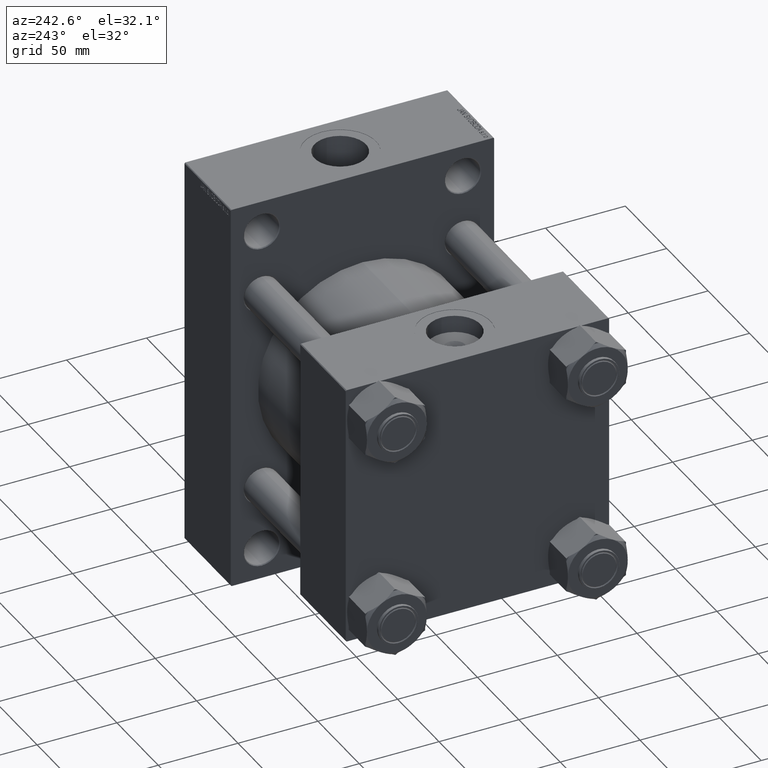
[diagram: clean part render]
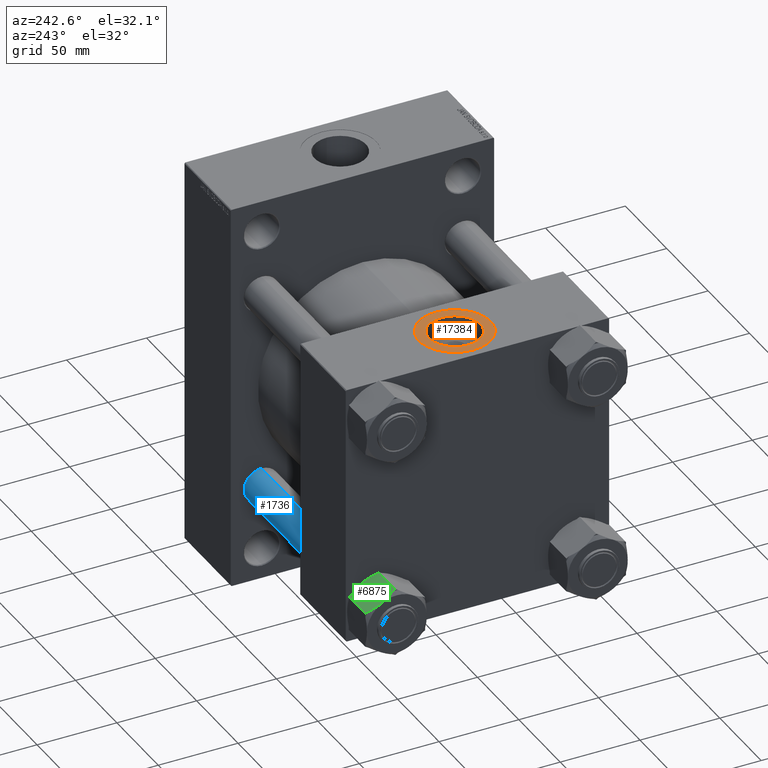
[diagram: same view with three faces highlighted in distinct colors, each labeled with its STEP entity id]
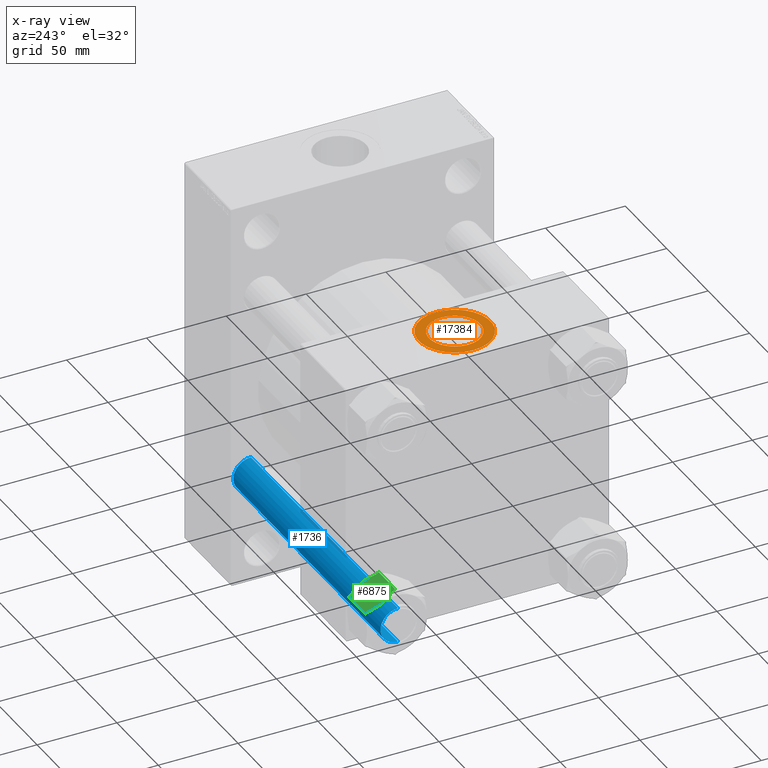
[diagram: x-ray of the same camera — body ghosted, the three highlighted faces saturated]
A machine part, auxiliary view with three faces highlighted in distinct colors.
The next image is the same camera in x-ray (body ghosted, the three faces saturated) — at least one of them is partly hidden behind the body in this view.
Their STEP definitions:

[orange] entity #17384 — the highlighted planar face has unit normal (0, 0, 1).
#1739 = ORIENTED_EDGE ( 'NONE', *, *, #7245, .T. ) ;
#4584 = DIRECTION ( 'NONE',  ( 0.000000000000000000, 0.000000000000000000, 1.000000000000000000 ) ) ;
#4662 = VERTEX_POINT ( 'NONE', #31161 ) ;
#6304 = FACE_BOUND ( 'NONE', #45972, .T. ) ;
#7245 = EDGE_CURVE ( 'NONE', #19672, #4662, #30187, .T. ) ;
#7646 = EDGE_CURVE ( 'NONE', #4662, #19672, #28718, .T. ) ;
#9066 = ORIENTED_EDGE ( 'NONE', *, *, #7646, .T. ) ;
#9738 = AXIS2_PLACEMENT_3D ( 'NONE', #13514, #28227, #20996 ) ;
#11211 = EDGE_LOOP ( 'NONE', ( #1739, #9066 ) ) ;
#11302 = ORIENTED_EDGE ( 'NONE', *, *, #14166, .F. ) ;
#11693 = CARTESIAN_POINT ( 'NONE',  ( 27.50000000000000000, -1.561251128379125754E-14, 82.29999999999996874 ) ) ;
#12532 = VERTEX_POINT ( 'NONE', #24367 ) ;
#13364 = DIRECTION ( 'NONE',  ( 0.000000000000000000, 0.000000000000000000, 1.000000000000000000 ) ) ;
#13514 = CARTESIAN_POINT ( 'NONE',  ( 27.50000000000000000, -1.561251128379125754E-14, 82.29999999999996874 ) ) ;
#14166 = EDGE_CURVE ( 'NONE', #43901, #12532, #15789, .T. ) ;
#14557 = CIRCLE ( 'NONE', #38406, 16.12000000000000455 ) ;
#15789 = CIRCLE ( 'NONE', #38095, 16.12000000000000455 ) ;
#16508 = ORIENTED_EDGE ( 'NONE', *, *, #26451, .F. ) ;
#17384 = ADVANCED_FACE ( 'NONE', ( #6304, #39558 ), #43879, .T. ) ;
#18576 = DIRECTION ( 'NONE',  ( 1.000000000000000000, 0.000000000000000000, 0.000000000000000000 ) ) ;
#19446 = AXIS2_PLACEMENT_3D ( 'NONE', #23745, #13364, #31691 ) ;
#19672 = VERTEX_POINT ( 'NONE', #24539 ) ;
#20996 = DIRECTION ( 'NONE',  ( 1.000000000000000000, 0.000000000000000000, -0.000000000000000000 ) ) ;
#22906 = DIRECTION ( 'NONE',  ( 0.000000000000000000, 0.000000000000000000, 1.000000000000000000 ) ) ;
#23745 = CARTESIAN_POINT ( 'NONE',  ( 27.50000000000000000, -1.561251128379125754E-14, 82.29999999999996874 ) ) ;
#24367 = CARTESIAN_POINT ( 'NONE',  ( 43.62000000000000455, -1.561251128379125754E-14, 82.29999999999996874 ) ) ;
#24539 = CARTESIAN_POINT ( 'NONE',  ( 50.00000000000000000, -1.561251128379125754E-14, 82.29999999999996874 ) ) ;
#26289 = CARTESIAN_POINT ( 'NONE',  ( 27.50000000000000000, -1.561251128379125754E-14, 82.29999999999996874 ) ) ;
#26451 = EDGE_CURVE ( 'NONE', #12532, #43901, #14557, .T. ) ;
#26519 = CARTESIAN_POINT ( 'NONE',  ( 27.50000000000000000, -1.561251128379125754E-14, 82.29999999999996874 ) ) ;
#28227 = DIRECTION ( 'NONE',  ( 0.000000000000000000, 0.000000000000000000, 1.000000000000000000 ) ) ;
#28718 = CIRCLE ( 'NONE', #19446, 22.50000000000000355 ) ;
#30187 = CIRCLE ( 'NONE', #47141, 22.50000000000000355 ) ;
#31161 = CARTESIAN_POINT ( 'NONE',  ( 4.999999999999993783, -1.285705598570971355E-14, 82.29999999999996874 ) ) ;
#31691 = DIRECTION ( 'NONE',  ( 1.000000000000000000, 0.000000000000000000, 0.000000000000000000 ) ) ;
#33864 = DIRECTION ( 'NONE',  ( 1.000000000000000000, 0.000000000000000000, 0.000000000000000000 ) ) ;
#37199 = CARTESIAN_POINT ( 'NONE',  ( 11.37999999999999012, -1.363838064356572430E-14, 82.29999999999996874 ) ) ;
#37622 = DIRECTION ( 'NONE',  ( 1.000000000000000000, 0.000000000000000000, 0.000000000000000000 ) ) ;
#38095 = AXIS2_PLACEMENT_3D ( 'NONE', #11693, #41100, #33864 ) ;
#38406 = AXIS2_PLACEMENT_3D ( 'NONE', #26519, #22906, #37622 ) ;
#39558 = FACE_OUTER_BOUND ( 'NONE', #11211, .T. ) ;
#41100 = DIRECTION ( 'NONE',  ( 0.000000000000000000, 0.000000000000000000, 1.000000000000000000 ) ) ;
#43879 = PLANE ( 'NONE',  #9738 ) ;
#43901 = VERTEX_POINT ( 'NONE', #37199 ) ;
#45972 = EDGE_LOOP ( 'NONE', ( #16508, #11302 ) ) ;
#47141 = AXIS2_PLACEMENT_3D ( 'NONE', #26289, #4584, #18576 ) ;

[blue] entity #1736 — the highlighted cylindrical surface (edge-blend (fillet) strip) has radius 11 mm, axis along (-1, -0, 0).
#1736 = ADVANCED_FACE ( 'NONE', ( #4586 ), #44615, .T. ) ;
#4586 = FACE_OUTER_BOUND ( 'NONE', #47509, .T. ) ;
#6032 = ORIENTED_EDGE ( 'NONE', *, *, #39517, .T. ) ;
#6513 = VERTEX_POINT ( 'NONE', #31723 ) ;
#6838 = VECTOR ( 'NONE', #42385, 1000.000000000000000 ) ;
#8511 = ORIENTED_EDGE ( 'NONE', *, *, #16439, .F. ) ;
#9456 = CARTESIAN_POINT ( 'NONE',  ( 0.000000000000000000, 0.000000000000000000, 0.5000000000001392220 ) ) ;
#9709 = CARTESIAN_POINT ( 'NONE',  ( -11.00000000000000000, 0.000000000000000000, 179.0000000000000000 ) ) ;
#9943 = DIRECTION ( 'NONE',  ( 1.000000000000000000, 0.000000000000000000, 0.000000000000000000 ) ) ;
#11593 = DIRECTION ( 'NONE',  ( -0.000000000000000000, -0.000000000000000000, -1.000000000000000000 ) ) ;
#11629 = LINE ( 'NONE', #33553, #6838 ) ;
#13807 = LINE ( 'NONE', #9709, #33562 ) ;
#16439 = EDGE_CURVE ( 'NONE', #6513, #38801, #13807, .T. ) ;
#18061 = ORIENTED_EDGE ( 'NONE', *, *, #36986, .T. ) ;
#19957 = VERTEX_POINT ( 'NONE', #41623 ) ;
#20542 = DIRECTION ( 'NONE',  ( 1.000000000000000000, 0.000000000000000000, 0.000000000000000000 ) ) ;
#21173 = AXIS2_PLACEMENT_3D ( 'NONE', #9456, #46567, #9943 ) ;
#22128 = AXIS2_PLACEMENT_3D ( 'NONE', #38866, #35730, #20542 ) ;
#22578 = CARTESIAN_POINT ( 'NONE',  ( -11.00000000000000000, 0.000000000000000000, 0.5000000000001392220 ) ) ;
#26933 = CARTESIAN_POINT ( 'NONE',  ( 11.00000000000000000, 1.347111479062088207E-15, 0.5000000000001392220 ) ) ;
#31723 = CARTESIAN_POINT ( 'NONE',  ( -11.00000000000000000, 0.000000000000000000, 178.5000000000000853 ) ) ;
#31859 = EDGE_CURVE ( 'NONE', #41541, #38801, #42751, .T. ) ;
#33553 = CARTESIAN_POINT ( 'NONE',  ( 11.00000000000000000, 1.347111479062088207E-15, 179.0000000000000000 ) ) ;
#33562 = VECTOR ( 'NONE', #43224, 1000.000000000000000 ) ;
#33765 = CARTESIAN_POINT ( 'NONE',  ( 0.000000000000000000, 0.000000000000000000, 179.0000000000000000 ) ) ;
#35730 = DIRECTION ( 'NONE',  ( 0.000000000000000000, 0.000000000000000000, -1.000000000000000000 ) ) ;
#36986 = EDGE_CURVE ( 'NONE', #6513, #19957, #43682, .T. ) ;
#37151 = DIRECTION ( 'NONE',  ( -1.000000000000000000, 0.000000000000000000, 0.000000000000000000 ) ) ;
#38499 = ORIENTED_EDGE ( 'NONE', *, *, #31859, .T. ) ;
#38801 = VERTEX_POINT ( 'NONE', #22578 ) ;
#38866 = CARTESIAN_POINT ( 'NONE',  ( 0.000000000000000000, 0.000000000000000000, 178.5000000000000853 ) ) ;
#39517 = EDGE_CURVE ( 'NONE', #19957, #41541, #11629, .T. ) ;
#41541 = VERTEX_POINT ( 'NONE', #26933 ) ;
#41623 = CARTESIAN_POINT ( 'NONE',  ( 11.00000000000000000, 1.347111479062088207E-15, 178.5000000000000853 ) ) ;
#42385 = DIRECTION ( 'NONE',  ( -0.000000000000000000, -0.000000000000000000, -1.000000000000000000 ) ) ;
#42751 = CIRCLE ( 'NONE', #21173, 11.00000000000000000 ) ;
#43224 = DIRECTION ( 'NONE',  ( -0.000000000000000000, -0.000000000000000000, -1.000000000000000000 ) ) ;
#43682 = CIRCLE ( 'NONE', #22128, 11.00000000000000000 ) ;
#44249 = AXIS2_PLACEMENT_3D ( 'NONE', #33765, #11593, #37151 ) ;
#44615 = CYLINDRICAL_SURFACE ( 'NONE', #44249, 11.00000000000000000 ) ;
#46567 = DIRECTION ( 'NONE',  ( -0.000000000000000000, -0.000000000000000000, 1.000000000000000000 ) ) ;
#47509 = EDGE_LOOP ( 'NONE', ( #18061, #6032, #38499, #8511 ) ) ;

[green] entity #6875 — the highlighted planar face has unit normal (-0, -0.5, -0.866).
#548 = LINE ( 'NONE', #15259, #41749 ) ;
#676 = CARTESIAN_POINT ( 'NONE',  ( 16.21500000000001052, 9.361734614909783758, -24.00000000000000000 ) ) ;
#911 = CARTESIAN_POINT ( 'NONE',  ( 19.94246781890516473, 2.905570968988103520, -22.58212083167677875 ) ) ;
#956 = VERTEX_POINT ( 'NONE', #30528 ) ;
#998 = CARTESIAN_POINT ( 'NONE',  ( 12.48753218109485807, 15.81789826083145378, -1.417879168323224137 ) ) ;
#2231 = CARTESIAN_POINT ( 'NONE',  ( 19.22845374672207441, 4.142279619328364859, -0.8936198542777848974 ) ) ;
#2492 = ORIENTED_EDGE ( 'NONE', *, *, #28964, .F. ) ;
#2498 = ORIENTED_EDGE ( 'NONE', *, *, #6947, .T. ) ;
#2524 = CARTESIAN_POINT ( 'NONE',  ( 10.81000000000000405, 18.72346922981957107, -22.00000000000000000 ) ) ;
#2660 = B_SPLINE_CURVE_WITH_KNOTS ( 'NONE', 3,
 ( #7524, #24893, #25368, #10898, #21750, #43452, #39601, #6579, #2944, #25132 ),
 .UNSPECIFIED., .F., .F.,
 ( 4, 2, 2, 2, 4 ),
 ( 5.007809737530463276E-07, 0.004555175037830403589, 0.006832512166258727926, 0.007971180730472890094, 0.009109849294687055732 ),
 .UNSPECIFIED. ) ;
#2944 = CARTESIAN_POINT ( 'NONE',  ( 16.02284832181305063, 9.694551084289217968, -24.00000000000000711 ) ) ;
#2945 = CARTESIAN_POINT ( 'NONE',  ( 16.21500000000001052, 9.361734614909783758, -24.00000000000000000 ) ) ;
#3210 = EDGE_CURVE ( 'NONE', #28047, #30860, #24482, .T. ) ;
#3490 = B_SPLINE_CURVE_WITH_KNOTS ( 'NONE', 3,
 ( #38887, #23459, #2231, #45634, #12374, #35019, #34787, #27553, #34318, #41786 ),
 .UNSPECIFIED., .F., .F.,
 ( 4, 2, 2, 2, 4 ),
 ( 5.007809737542536672E-07, 0.004555175037830400987, 0.006832512166258725324, 0.007971180730472888359, 0.009109849294687050528 ),
 .UNSPECIFIED. ) ;
#3747 = CARTESIAN_POINT ( 'NONE',  ( 11.77388873931088575, 17.05396496048961197, -22.00000000000000000 ) ) ;
#3836 = DIRECTION ( 'NONE',  ( -0.000000000000000000, -0.000000000000000000, 1.000000000000000000 ) ) ;
#4084 = B_SPLINE_CURVE_WITH_KNOTS ( 'NONE', 3,
 ( #45584, #41968, #15473, #15940, #30178, #998, #44881, #34736 ),
 .UNSPECIFIED., .F., .F.,
 ( 4, 2, 2, 4 ),
 ( 0.009109849294687050528, 0.01366157320126712774, 0.01593743515455716547, 0.01821329710784720668 ),
 .UNSPECIFIED. ) ;
#5524 = DIRECTION ( 'NONE',  ( 0.4999999999999998335, -0.8660254037844387076, 0.000000000000000000 ) ) ;
#6047 = ORIENTED_EDGE ( 'NONE', *, *, #40981, .F. ) ;
#6379 = FACE_OUTER_BOUND ( 'NONE', #9556, .T. ) ;
#6579 = CARTESIAN_POINT ( 'NONE',  ( 15.82895367481208382, 10.03038646421051716, -23.98802662332917990 ) ) ;
#6875 = ADVANCED_FACE ( 'NONE', ( #6379 ), #32155, .F. ) ;
#6947 = EDGE_CURVE ( 'NONE', #18887, #956, #548, .T. ) ;
#7321 = CARTESIAN_POINT ( 'NONE',  ( 10.81000000000000405, 18.72346922981957107, -24.00000000000000000 ) ) ;
#7524 = CARTESIAN_POINT ( 'NONE',  ( 11.77388873931088575, 17.05396496048961197, -22.00000000000000000 ) ) ;
#7986 = ORIENTED_EDGE ( 'NONE', *, *, #11819, .F. ) ;
#8728 = EDGE_CURVE ( 'NONE', #46013, #32878, #2660, .T. ) ;
#9556 = EDGE_LOOP ( 'NONE', ( #6047, #2498, #42726, #25392, #40340, #12122, #39049, #2492, #7986, #35970 ) ) ;
#10898 = CARTESIAN_POINT ( 'NONE',  ( 14.30978229978947525, 12.66166847115394845, -23.62969313679643335 ) ) ;
#11819 = EDGE_CURVE ( 'NONE', #32878, #23140, #47309, .T. ) ;
#12122 = ORIENTED_EDGE ( 'NONE', *, *, #3210, .F. ) ;
#12374 = CARTESIAN_POINT ( 'NONE',  ( 17.74616263960890805, 6.709683128455893986, -0.2338220771833900424 ) ) ;
#12624 = EDGE_CURVE ( 'NONE', #39238, #28047, #22171, .T. ) ;
#12706 = CARTESIAN_POINT ( 'NONE',  ( 18.84657086838734941, 4.803720167144753361, -23.28765129395944911 ) ) ;
#15259 = CARTESIAN_POINT ( 'NONE',  ( 10.81000000000000405, 18.72346922981957107, -24.00000000000000000 ) ) ;
#15473 = CARTESIAN_POINT ( 'NONE',  ( 14.69400019531146562, 11.99618355493267785, -0.1908188403547866896 ) ) ;
#15940 = CARTESIAN_POINT ( 'NONE',  ( 13.58342913161266452, 13.91974906267480172, -0.7123487060405472304 ) ) ;
#16282 = EDGE_CURVE ( 'NONE', #30860, #29963, #3490, .T. ) ;
#18887 = VERTEX_POINT ( 'NONE', #2524 ) ;
#20183 = CARTESIAN_POINT ( 'NONE',  ( 20.65611126068912640, 1.669504269329956436, -2.000000000000000000 ) ) ;
#20600 = VERTEX_POINT ( 'NONE', #22988 ) ;
#20765 = LINE ( 'NONE', #35477, #25340 ) ;
#21002 = DIRECTION ( 'NONE',  ( 0.4999999999999998335, -0.8660254037844387076, 0.000000000000000000 ) ) ;
#21181 = LINE ( 'NONE', #28179, #42330 ) ;
#21750 = CARTESIAN_POINT ( 'NONE',  ( 14.68383736039110943, 12.01378610136367797, -23.76617792281661323 ) ) ;
#22171 = LINE ( 'NONE', #36883, #46526 ) ;
#22988 = CARTESIAN_POINT ( 'NONE',  ( 11.77388873931088753, 17.05396496048960842, -2.000000000000000000 ) ) ;
#23140 = VERTEX_POINT ( 'NONE', #34834 ) ;
#23459 = CARTESIAN_POINT ( 'NONE',  ( 19.94878361794605581, 2.894631684158886831, -1.393668941363773506 ) ) ;
#23765 = DIRECTION ( 'NONE',  ( -0.4999999999999998335, 0.8660254037844387076, 0.000000000000000000 ) ) ;
#24482 = LINE ( 'NONE', #27372, #26691 ) ;
#24851 = EDGE_CURVE ( 'NONE', #20600, #956, #41497, .T. ) ;
#24893 = CARTESIAN_POINT ( 'NONE',  ( 12.48121638205395989, 15.82883754566068113, -22.60633105863623271 ) ) ;
#25132 = CARTESIAN_POINT ( 'NONE',  ( 16.21500000000001052, 9.361734614909783758, -24.00000000000000000 ) ) ;
#25340 = VECTOR ( 'NONE', #21002, 1000.000000000000114 ) ;
#25368 = CARTESIAN_POINT ( 'NONE',  ( 13.20154625327793241, 14.58118961049120266, -23.10638014572221621 ) ) ;
#25392 = ORIENTED_EDGE ( 'NONE', *, *, #33963, .F. ) ;
#26691 = VECTOR ( 'NONE', #23765, 1000.000000000000114 ) ;
#27372 = CARTESIAN_POINT ( 'NONE',  ( 10.81000000000000405, 18.72346922981957107, -2.000000000000001776 ) ) ;
#27404 = CARTESIAN_POINT ( 'NONE',  ( 16.21500000000001052, 9.361734614909783758, 0.000000000000000000 ) ) ;
#27553 = CARTESIAN_POINT ( 'NONE',  ( 16.60104632518792656, 8.693082765609046803, -0.01197337667081646920 ) ) ;
#28047 = VERTEX_POINT ( 'NONE', #30990 ) ;
#28179 = CARTESIAN_POINT ( 'NONE',  ( 10.81000000000000405, 18.72346922981957107, -22.00000000000000000 ) ) ;
#28964 = EDGE_CURVE ( 'NONE', #23140, #39238, #21181, .T. ) ;
#29963 = VERTEX_POINT ( 'NONE', #27404 ) ;
#30178 = CARTESIAN_POINT ( 'NONE',  ( 13.21634051119549369, 14.55556520411771970, -0.9250850388960963899 ) ) ;
#30528 = CARTESIAN_POINT ( 'NONE',  ( 10.81000000000000405, 18.72346922981957107, -2.000000000000001776 ) ) ;
#30634 = CARTESIAN_POINT ( 'NONE',  ( 10.81000000000000405, 18.72346922981957107, -2.000000000000001776 ) ) ;
#30860 = VERTEX_POINT ( 'NONE', #20183 ) ;
#30990 = CARTESIAN_POINT ( 'NONE',  ( 21.62000000000000810, -3.103245954629008997E-15, -2.000000000000001776 ) ) ;
#32155 = PLANE ( 'NONE',  #34832 ) ;
#32878 = VERTEX_POINT ( 'NONE', #2945 ) ;
#33963 = EDGE_CURVE ( 'NONE', #29963, #20600, #4084, .T. ) ;
#34318 = CARTESIAN_POINT ( 'NONE',  ( 16.40715167818697040, 9.028918145530349548, 6.071955682392452769E-15 ) ) ;
#34323 = CARTESIAN_POINT ( 'NONE',  ( 21.62000000000000810, -3.103245954629008997E-15, -22.00000000000000000 ) ) ;
#34658 = CARTESIAN_POINT ( 'NONE',  ( 20.65611126068912640, 1.669504269329951995, -22.00000000000000000 ) ) ;
#34736 = CARTESIAN_POINT ( 'NONE',  ( 11.77388873931088753, 17.05396496048960842, -2.000000000000000000 ) ) ;
#34787 = CARTESIAN_POINT ( 'NONE',  ( 16.98598932500589243, 8.026341931906362248, -0.05945867712355891455 ) ) ;
#34832 = AXIS2_PLACEMENT_3D ( 'NONE', #7321, #46859, #39634 ) ;
#34834 = CARTESIAN_POINT ( 'NONE',  ( 20.65611126068912640, 1.669504269329951995, -22.00000000000000000 ) ) ;
#35019 = CARTESIAN_POINT ( 'NONE',  ( 17.17703765647819125, 7.695436515095084751, -0.09483449834988647020 ) ) ;
#35281 = VECTOR ( 'NONE', #45574, 1000.000000000000114 ) ;
#35477 = CARTESIAN_POINT ( 'NONE',  ( 10.81000000000000405, 18.72346922981957107, -22.00000000000000000 ) ) ;
#35970 = ORIENTED_EDGE ( 'NONE', *, *, #8728, .F. ) ;
#36883 = CARTESIAN_POINT ( 'NONE',  ( 21.62000000000000810, -3.103245954629008997E-15, -24.00000000000000000 ) ) ;
#38039 = CARTESIAN_POINT ( 'NONE',  ( 17.73599980468855009, 6.727285674886879896, -23.80918115964520609 ) ) ;
#38887 = CARTESIAN_POINT ( 'NONE',  ( 20.65611126068912640, 1.669504269329956436, -2.000000000000000000 ) ) ;
#39049 = ORIENTED_EDGE ( 'NONE', *, *, #12624, .F. ) ;
#39238 = VERTEX_POINT ( 'NONE', #34323 ) ;
#39601 = CARTESIAN_POINT ( 'NONE',  ( 15.44401067499413216, 10.69712729791320527, -23.94054132287644521 ) ) ;
#39634 = DIRECTION ( 'NONE',  ( 0.4999999999999998335, -0.8660254037844387076, 0.000000000000000000 ) ) ;
#40340 = ORIENTED_EDGE ( 'NONE', *, *, #16282, .F. ) ;
#40981 = EDGE_CURVE ( 'NONE', #18887, #46013, #20765, .T. ) ;
#41497 = LINE ( 'NONE', #30634, #35281 ) ;
#41749 = VECTOR ( 'NONE', #44674, 1000.000000000000000 ) ;
#41786 = CARTESIAN_POINT ( 'NONE',  ( 16.21500000000001052, 9.361734614909783758, 0.000000000000000000 ) ) ;
#41889 = CARTESIAN_POINT ( 'NONE',  ( 20.30204076991168449, 2.282772348817336816, -22.30351413196914478 ) ) ;
#41968 = CARTESIAN_POINT ( 'NONE',  ( 15.44689116237993431, 10.69213814741042690, 6.071532165918818520E-15 ) ) ;
#42330 = VECTOR ( 'NONE', #5524, 1000.000000000000114 ) ;
#42726 = ORIENTED_EDGE ( 'NONE', *, *, #24851, .F. ) ;
#43452 = CARTESIAN_POINT ( 'NONE',  ( 15.25296234352183156, 11.02803271472448188, -23.90516550165012433 ) ) ;
#44674 = DIRECTION ( 'NONE',  ( -0.000000000000000000, -0.000000000000000000, 1.000000000000000000 ) ) ;
#44881 = CARTESIAN_POINT ( 'NONE',  ( 12.12795923008833121, 16.44069688100222848, -1.696485868030860544 ) ) ;
#45510 = CARTESIAN_POINT ( 'NONE',  ( 19.21365948880452734, 4.167904025701839821, -23.07491496110390017 ) ) ;
#45574 = DIRECTION ( 'NONE',  ( -0.4999999999999998335, 0.8660254037844387076, 0.000000000000000000 ) ) ;
#45584 = CARTESIAN_POINT ( 'NONE',  ( 16.21500000000001052, 9.361734614909783758, 0.000000000000000000 ) ) ;
#45634 = CARTESIAN_POINT ( 'NONE',  ( 18.12021770021053868, 6.061800758665609301, -0.3703068632035601548 ) ) ;
#45738 = CARTESIAN_POINT ( 'NONE',  ( 16.98310883762007961, 8.031331082409133515, -24.00000000000000355 ) ) ;
#46013 = VERTEX_POINT ( 'NONE', #3747 ) ;
#46526 = VECTOR ( 'NONE', #3836, 1000.000000000000000 ) ;
#46859 = DIRECTION ( 'NONE',  ( -0.8660254037844387076, -0.4999999999999998335, 0.000000000000000000 ) ) ;
#47309 = B_SPLINE_CURVE_WITH_KNOTS ( 'NONE', 3,
 ( #676, #45738, #38039, #12706, #45510, #911, #41889, #34658 ),
 .UNSPECIFIED., .F., .F.,
 ( 4, 2, 2, 4 ),
 ( 0.009109849294687055732, 0.01366157320126713814, 0.01593743515455717935, 0.01821329710784722056 ),
 .UNSPECIFIED. ) ;